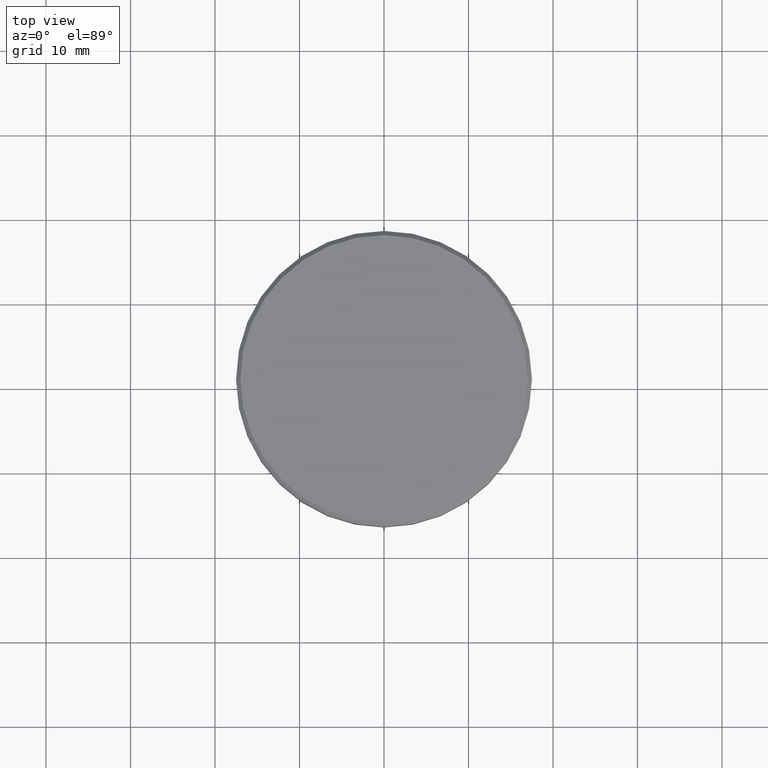
[diagram: clean part render]
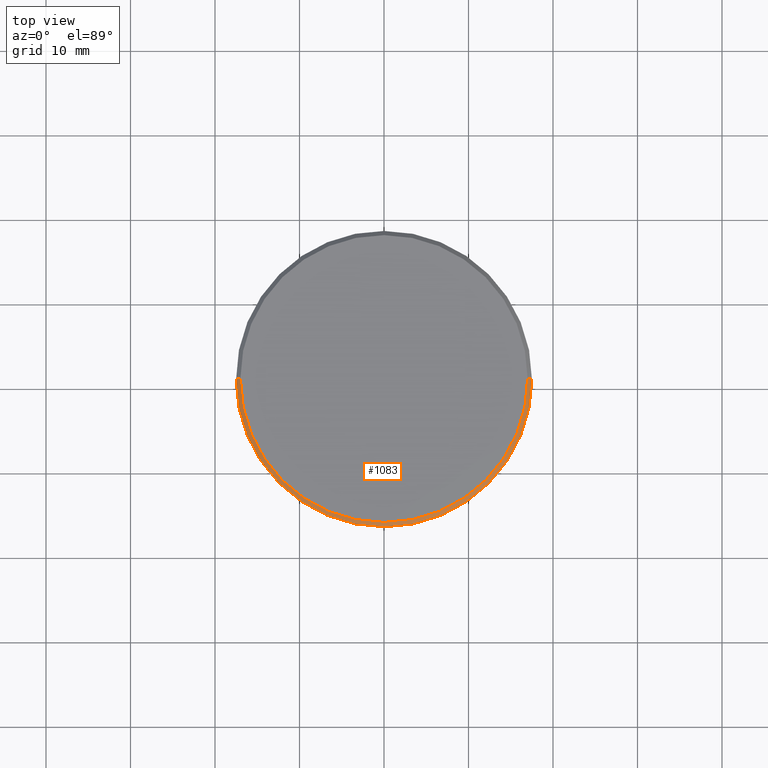
[diagram: same view with one face highlighted and labeled with its STEP entity id]
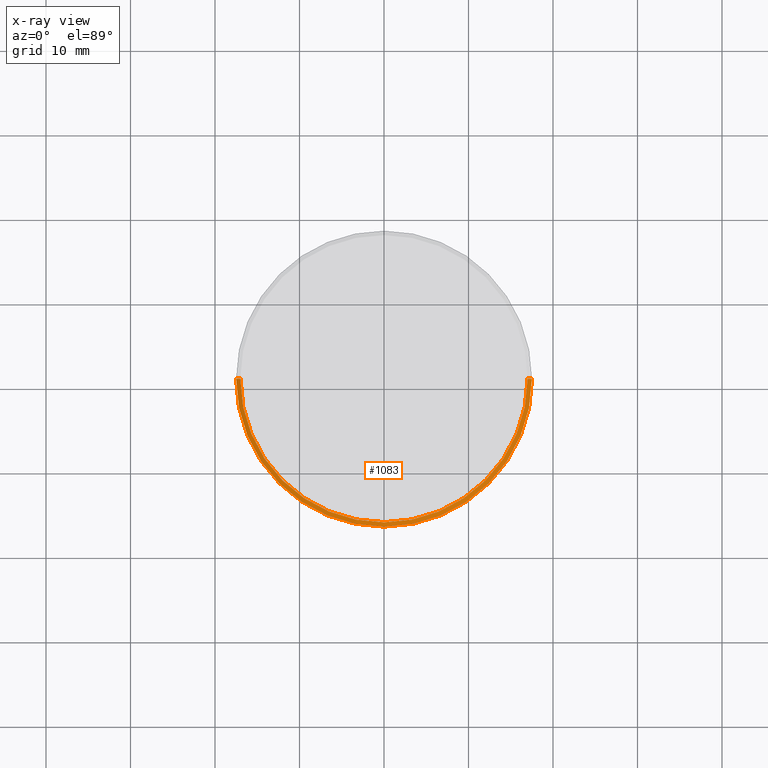
[diagram: x-ray of the same camera — body ghosted, the highlighted face saturated]
A machine part, top view. The second image highlights one B-rep face of the part: STEP entity #1083.
The next image is the same camera in x-ray: the body ghosted, the highlighted face saturated — about 0% of this face is hidden behind the body in this view.
In plain terms, the highlighted conical surface has half-angle 45 deg.
Its self-contained STEP definition (entity closure, byte-faithful):
#17 = VERTEX_POINT ( 'NONE', #31 ) ;
#31 = CARTESIAN_POINT ( 'NONE',  ( -16.99999999999999289, 0.000000000000000000, 0.000000000000000000 ) ) ;
#34 = ORIENTED_EDGE ( 'NONE', *, *, #938, .F. ) ;
#183 = AXIS2_PLACEMENT_3D ( 'NONE', #621, #525, #729 ) ;
#225 = DIRECTION ( 'NONE',  ( 0.000000000000000000, 0.000000000000000000, -1.000000000000000000 ) ) ;
#231 = EDGE_LOOP ( 'NONE', ( #389, #422, #906, #34 ) ) ;
#252 = AXIS2_PLACEMENT_3D ( 'NONE', #887, #315, #605 ) ;
#290 = CIRCLE ( 'NONE', #252, 16.99999999999999289 ) ;
#294 = VERTEX_POINT ( 'NONE', #468 ) ;
#315 = DIRECTION ( 'NONE',  ( -0.000000000000000000, -0.000000000000000000, 1.000000000000000000 ) ) ;
#374 = VECTOR ( 'NONE', #661, 999.9999999999998863 ) ;
#389 = ORIENTED_EDGE ( 'NONE', *, *, #1062, .F. ) ;
#417 = VERTEX_POINT ( 'NONE', #986 ) ;
#422 = ORIENTED_EDGE ( 'NONE', *, *, #801, .F. ) ;
#468 = CARTESIAN_POINT ( 'NONE',  ( -17.50000000000000000, 2.143131898507868248E-15, -0.5000000000000213163 ) ) ;
#470 = CARTESIAN_POINT ( 'NONE',  ( 17.50000000000000000, 0.000000000000000000, -0.5000000000000213163 ) ) ;
#525 = DIRECTION ( 'NONE',  ( 0.000000000000000000, 0.000000000000000000, -1.000000000000000000 ) ) ;
#578 = VERTEX_POINT ( 'NONE', #470 ) ;
#605 = DIRECTION ( 'NONE',  ( 1.000000000000000000, 0.000000000000000000, 0.000000000000000000 ) ) ;
#621 = CARTESIAN_POINT ( 'NONE',  ( 0.000000000000000000, 0.000000000000000000, -0.5000000000000213163 ) ) ;
#661 = DIRECTION ( 'NONE',  ( 0.7071067811865376918, 8.659560562354813296E-17, -0.7071067811865574537 ) ) ;
#664 = VECTOR ( 'NONE', #764, 999.9999999999998863 ) ;
#729 = DIRECTION ( 'NONE',  ( 1.000000000000000000, 0.000000000000000000, 0.000000000000000000 ) ) ;
#741 = AXIS2_PLACEMENT_3D ( 'NONE', #856, #225, #1182 ) ;
#754 = LINE ( 'NONE', #1037, #374 ) ;
#764 = DIRECTION ( 'NONE',  ( -0.7071067811865376918, 0.000000000000000000, -0.7071067811865574537 ) ) ;
#765 = EDGE_CURVE ( 'NONE', #17, #294, #1046, .T. ) ;
#787 = CARTESIAN_POINT ( 'NONE',  ( -16.99999999999999289, 0.000000000000000000, 0.000000000000000000 ) ) ;
#801 = EDGE_CURVE ( 'NONE', #17, #417, #290, .T. ) ;
#829 = CONICAL_SURFACE ( 'NONE', #741, 16.99999999999999289, 0.7853981633974344012 ) ;
#856 = CARTESIAN_POINT ( 'NONE',  ( 0.000000000000000000, 0.000000000000000000, 0.000000000000000000 ) ) ;
#887 = CARTESIAN_POINT ( 'NONE',  ( 0.000000000000000000, 0.000000000000000000, 0.000000000000000000 ) ) ;
#906 = ORIENTED_EDGE ( 'NONE', *, *, #765, .T. ) ;
#938 = EDGE_CURVE ( 'NONE', #578, #294, #987, .T. ) ;
#986 = CARTESIAN_POINT ( 'NONE',  ( 16.99999999999999289, 2.112515728529184067E-15, 0.000000000000000000 ) ) ;
#987 = CIRCLE ( 'NONE', #183, 17.50000000000000000 ) ;
#1037 = CARTESIAN_POINT ( 'NONE',  ( 16.99999999999999289, 2.081899558550499885E-15, 0.000000000000000000 ) ) ;
#1046 = LINE ( 'NONE', #787, #664 ) ;
#1062 = EDGE_CURVE ( 'NONE', #417, #578, #754, .T. ) ;
#1083 = ADVANCED_FACE ( 'NONE', ( #1124 ), #829, .T. ) ;
#1124 = FACE_OUTER_BOUND ( 'NONE', #231, .T. ) ;
#1182 = DIRECTION ( 'NONE',  ( -1.000000000000000000, 0.000000000000000000, 0.000000000000000000 ) ) ;